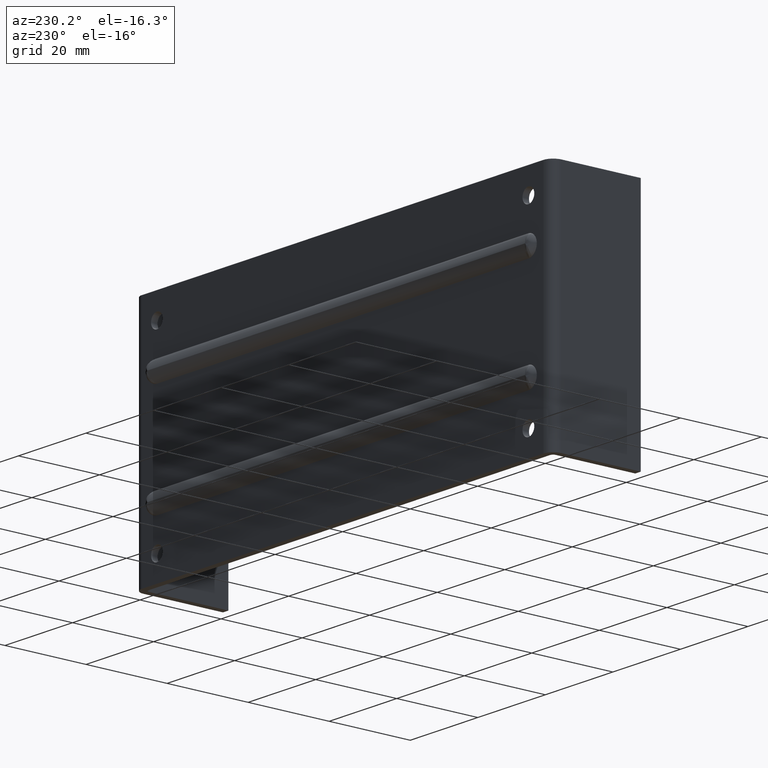
[diagram: clean part render]
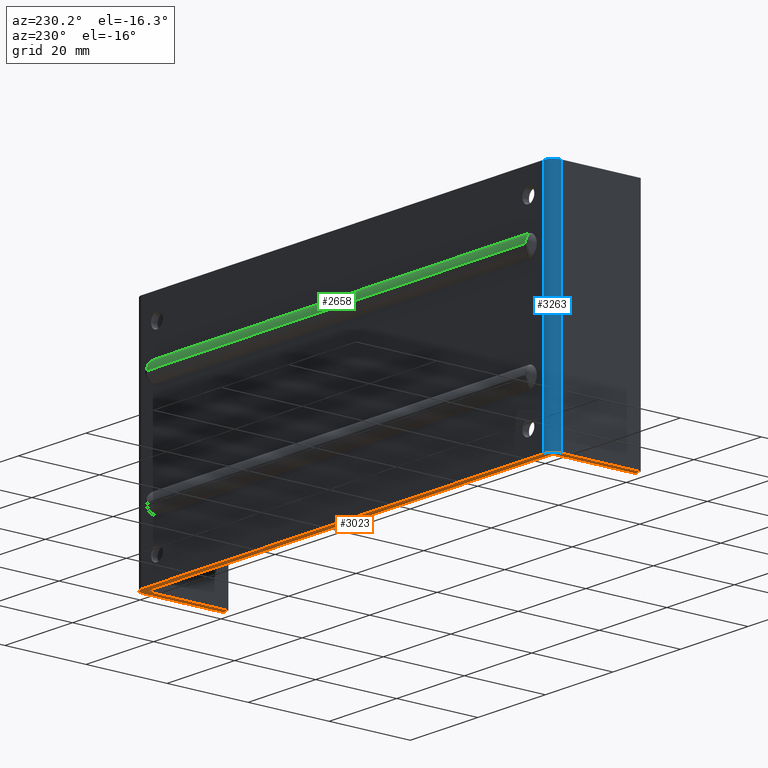
[diagram: same view with three faces highlighted in distinct colors, each labeled with its STEP entity id]
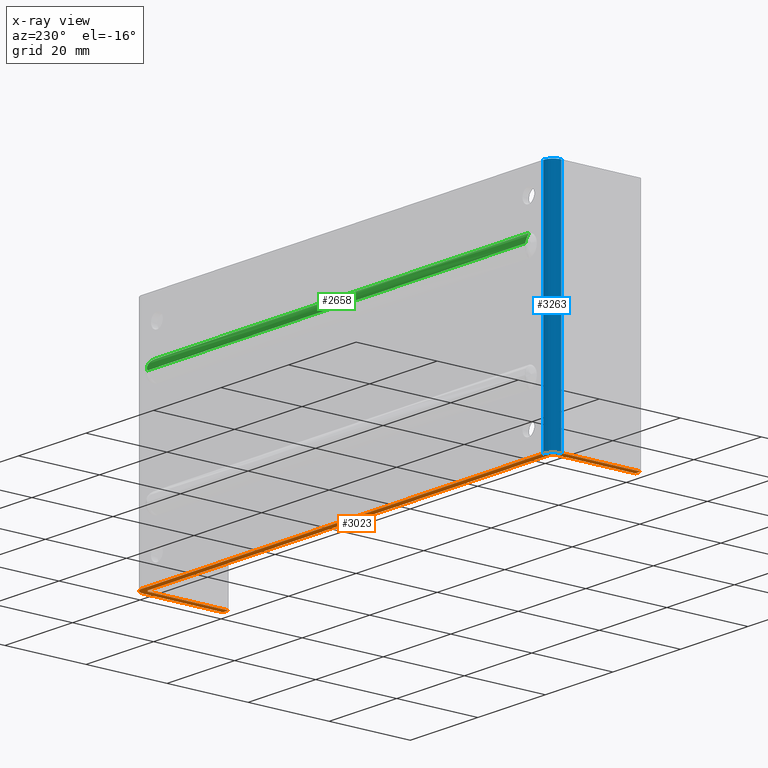
[diagram: x-ray of the same camera — body ghosted, the three highlighted faces saturated]
A machine part, auxiliary view with three faces highlighted in distinct colors.
The next image is the same camera in x-ray (body ghosted, the three faces saturated) — at least one of them is partly hidden behind the body in this view.
Their STEP definitions:

[orange] entity #3023 — the highlighted face is a freeform B-spline surface patch.
#2900=CARTESIAN_POINT('',(-68.028813157095016,1.098899957359721,-29.0));
#2901=CARTESIAN_POINT('',(68.028808733238293,1.098899957359721,-29.0));
#2902=CARTESIAN_POINT('',(-68.028813157095030,-23.098900547445709,-29.0));
#2903=CARTESIAN_POINT('',(68.028808733238293,-23.098900547445709,-29.0));
#2904=B_SPLINE_SURFACE_WITH_KNOTS('',1,1,((#2900,#2902),(#2901,#2903)),.UNSPECIFIED.,.F.,.F.,.U.,(2,2),(2,2),(0.0,136.057621890333310),(0.0,24.197800504805429),.UNSPECIFIED.);
#2905=CARTESIAN_POINT('',(-59.450000000000003,-1.421085E-014,-29.0));
#2906=VERTEX_POINT('',#2905);
#2907=CARTESIAN_POINT('',(-61.850000000000001,-2.400000000000000,-29.0));
#2908=VERTEX_POINT('',#2907);
#2909=CARTESIAN_POINT('',(-59.450000000000003,0.0,-29.0));
#2910=CARTESIAN_POINT('',(-61.849999999999994,0.0,-29.000000000000007));
#2911=CARTESIAN_POINT('',(-61.850000000000001,-2.400000000000000,-29.0));
#2919=(BOUNDED_CURVE()B_SPLINE_CURVE(2,(#2909,#2910,#2911),.UNSPECIFIED.,.F.,.U.)CURVE()GEOMETRIC_REPRESENTATION_ITEM()QUASI_UNIFORM_CURVE()RATIONAL_B_SPLINE_CURVE((1.0,0.707106781186547,1.0))REPRESENTATION_ITEM(''));
#2920=EDGE_CURVE('',#2906,#2908,#2919,.T.);
#2921=ORIENTED_EDGE('',*,*,#2920,.F.);
#2922=CARTESIAN_POINT('',(59.450000000000003,-7.105427E-015,-29.0));
#2923=VERTEX_POINT('',#2922);
#2924=CARTESIAN_POINT('',(59.450000000000003,-7.105427E-015,-29.0));
#2925=CARTESIAN_POINT('',(-59.450000000000003,-1.421085E-014,-29.0));
#2926=QUASI_UNIFORM_CURVE('',1,(#2924,#2925),.UNSPECIFIED.,.F.,.U.);
#2927=EDGE_CURVE('',#2923,#2906,#2926,.T.);
#2928=ORIENTED_EDGE('',*,*,#2927,.F.);
#2929=CARTESIAN_POINT('',(61.850000000000001,-2.400000000000000,-29.0));
#2930=VERTEX_POINT('',#2929);
#2931=CARTESIAN_POINT('',(61.850000000000001,-2.400000000000000,-29.0));
#2932=CARTESIAN_POINT('',(61.849999999999994,0.0,-29.000000000000007));
#2933=CARTESIAN_POINT('',(59.450000000000003,0.0,-29.0));
#2941=(BOUNDED_CURVE()B_SPLINE_CURVE(2,(#2931,#2932,#2933),.UNSPECIFIED.,.F.,.U.)CURVE()GEOMETRIC_REPRESENTATION_ITEM()QUASI_UNIFORM_CURVE()RATIONAL_B_SPLINE_CURVE((1.0,0.707106781186547,1.0))REPRESENTATION_ITEM(''));
#2942=EDGE_CURVE('',#2930,#2923,#2941,.T.);
#2943=ORIENTED_EDGE('',*,*,#2942,.F.);
#2944=CARTESIAN_POINT('',(61.850000000000001,-22.0,-29.0));
#2945=VERTEX_POINT('',#2944);
#2946=CARTESIAN_POINT('',(61.850000000000001,-22.0,-29.0));
#2947=CARTESIAN_POINT('',(61.850000000000001,-2.400000000000000,-29.0));
#2948=QUASI_UNIFORM_CURVE('',1,(#2946,#2947),.UNSPECIFIED.,.F.,.U.);
#2949=EDGE_CURVE('',#2945,#2930,#2948,.T.);
#2950=ORIENTED_EDGE('',*,*,#2949,.F.);
#2951=CARTESIAN_POINT('',(60.250000000000000,-22.0,-29.0));
#2952=VERTEX_POINT('',#2951);
#2953=CARTESIAN_POINT('',(60.250000000000000,-22.0,-29.0));
#2954=CARTESIAN_POINT('',(61.850000000000001,-22.0,-29.0));
#2955=QUASI_UNIFORM_CURVE('',1,(#2953,#2954),.UNSPECIFIED.,.F.,.U.);
#2956=EDGE_CURVE('',#2952,#2945,#2955,.T.);
#2957=ORIENTED_EDGE('',*,*,#2956,.F.);
#2958=CARTESIAN_POINT('',(60.250000000000000,-2.400000000000000,-29.0));
#2959=VERTEX_POINT('',#2958);
#2960=CARTESIAN_POINT('',(60.250000000000000,-2.400000000000000,-29.0));
#2961=CARTESIAN_POINT('',(60.250000000000000,-22.0,-29.0));
#2962=QUASI_UNIFORM_CURVE('',1,(#2960,#2961),.UNSPECIFIED.,.F.,.U.);
#2963=EDGE_CURVE('',#2959,#2952,#2962,.T.);
#2964=ORIENTED_EDGE('',*,*,#2963,.F.);
#2965=CARTESIAN_POINT('',(59.450000000000003,-1.600000000000000,-29.0));
#2966=VERTEX_POINT('',#2965);
#2967=CARTESIAN_POINT('',(60.250000000000007,-2.400000000000000,-29.0));
#2968=CARTESIAN_POINT('',(60.250000000000007,-1.600000000000000,-29.0));
#2969=CARTESIAN_POINT('',(59.450000000000003,-1.600000000000000,-29.0));
#2977=(BOUNDED_CURVE()B_SPLINE_CURVE(2,(#2967,#2968,#2969),.UNSPECIFIED.,.F.,.U.)CURVE()GEOMETRIC_REPRESENTATION_ITEM()QUASI_UNIFORM_CURVE()RATIONAL_B_SPLINE_CURVE((1.0,0.707106781186548,1.0))REPRESENTATION_ITEM(''));
#2978=EDGE_CURVE('',#2959,#2966,#2977,.T.);
#2979=ORIENTED_EDGE('',*,*,#2978,.T.);
#2980=CARTESIAN_POINT('',(-59.450000000000003,-1.600000000000000,-29.0));
#2981=VERTEX_POINT('',#2980);
#2982=CARTESIAN_POINT('',(-59.450000000000003,-1.600000000000000,-29.0));
#2983=CARTESIAN_POINT('',(59.450000000000003,-1.600000000000000,-29.0));
#2984=QUASI_UNIFORM_CURVE('',1,(#2982,#2983),.UNSPECIFIED.,.F.,.U.);
#2985=EDGE_CURVE('',#2981,#2966,#2984,.T.);
#2986=ORIENTED_EDGE('',*,*,#2985,.F.);
#2987=CARTESIAN_POINT('',(-60.250000000000000,-2.400000000000000,-29.0));
#2988=VERTEX_POINT('',#2987);
#2989=CARTESIAN_POINT('',(-59.450000000000003,-1.600000000000000,-29.0));
#2990=CARTESIAN_POINT('',(-60.250000000000007,-1.600000000000000,-29.0));
#2991=CARTESIAN_POINT('',(-60.250000000000007,-2.400000000000000,-29.0));
#2999=(BOUNDED_CURVE()B_SPLINE_CURVE(2,(#2989,#2990,#2991),.UNSPECIFIED.,.F.,.U.)CURVE()GEOMETRIC_REPRESENTATION_ITEM()QUASI_UNIFORM_CURVE()RATIONAL_B_SPLINE_CURVE((1.0,0.707106781186548,1.0))REPRESENTATION_ITEM(''));
#3000=EDGE_CURVE('',#2981,#2988,#2999,.T.);
#3001=ORIENTED_EDGE('',*,*,#3000,.T.);
#3002=CARTESIAN_POINT('',(-60.250000000000000,-22.0,-29.0));
#3003=VERTEX_POINT('',#3002);
#3004=CARTESIAN_POINT('',(-60.250000000000000,-22.0,-29.0));
#3005=CARTESIAN_POINT('',(-60.250000000000000,-2.400000000000000,-29.0));
#3006=QUASI_UNIFORM_CURVE('',1,(#3004,#3005),.UNSPECIFIED.,.F.,.U.);
#3007=EDGE_CURVE('',#3003,#2988,#3006,.T.);
#3008=ORIENTED_EDGE('',*,*,#3007,.F.);
#3009=CARTESIAN_POINT('',(-61.850000000000001,-22.0,-29.0));
#3010=VERTEX_POINT('',#3009);
#3011=CARTESIAN_POINT('',(-61.850000000000001,-22.0,-29.0));
#3012=CARTESIAN_POINT('',(-60.250000000000000,-22.0,-29.0));
#3013=QUASI_UNIFORM_CURVE('',1,(#3011,#3012),.UNSPECIFIED.,.F.,.U.);
#3014=EDGE_CURVE('',#3010,#3003,#3013,.T.);
#3015=ORIENTED_EDGE('',*,*,#3014,.F.);
#3016=CARTESIAN_POINT('',(-61.850000000000001,-2.400000000000000,-29.0));
#3017=CARTESIAN_POINT('',(-61.850000000000001,-22.0,-29.0));
#3018=QUASI_UNIFORM_CURVE('',1,(#3016,#3017),.UNSPECIFIED.,.F.,.U.);
#3019=EDGE_CURVE('',#2908,#3010,#3018,.T.);
#3020=ORIENTED_EDGE('',*,*,#3019,.F.);
#3021=EDGE_LOOP('',(#2921,#2928,#2943,#2950,#2957,#2964,#2979,#2986,#3001,#3008,#3015,#3020));
#3022=FACE_OUTER_BOUND('',#3021,.T.);
#3023=ADVANCED_FACE('',(#3022),#2904,.T.);

[blue] entity #3263 — the highlighted face is a freeform B-spline surface patch.
#2781=CARTESIAN_POINT('',(-59.450000000000003,-1.421085E-014,29.0));
#2782=VERTEX_POINT('',#2781);
#2783=CARTESIAN_POINT('',(-61.850000000000001,-2.400000000000000,29.0));
#2784=VERTEX_POINT('',#2783);
#2785=CARTESIAN_POINT('',(-59.450000000000003,0.0,29.0));
#2786=CARTESIAN_POINT('',(-61.849999999999994,0.0,29.000000000000007));
#2787=CARTESIAN_POINT('',(-61.850000000000001,-2.400000000000000,29.0));
#2795=(BOUNDED_CURVE()B_SPLINE_CURVE(2,(#2785,#2786,#2787),.UNSPECIFIED.,.F.,.U.)CURVE()GEOMETRIC_REPRESENTATION_ITEM()QUASI_UNIFORM_CURVE()RATIONAL_B_SPLINE_CURVE((1.0,0.707106781186547,1.0))REPRESENTATION_ITEM(''));
#2796=EDGE_CURVE('',#2782,#2784,#2795,.T.);
#2905=CARTESIAN_POINT('',(-59.450000000000003,-1.421085E-014,-29.0));
#2906=VERTEX_POINT('',#2905);
#2907=CARTESIAN_POINT('',(-61.850000000000001,-2.400000000000000,-29.0));
#2908=VERTEX_POINT('',#2907);
#2909=CARTESIAN_POINT('',(-59.450000000000003,0.0,-29.0));
#2910=CARTESIAN_POINT('',(-61.849999999999994,0.0,-29.000000000000007));
#2911=CARTESIAN_POINT('',(-61.850000000000001,-2.400000000000000,-29.0));
#2919=(BOUNDED_CURVE()B_SPLINE_CURVE(2,(#2909,#2910,#2911),.UNSPECIFIED.,.F.,.U.)CURVE()GEOMETRIC_REPRESENTATION_ITEM()QUASI_UNIFORM_CURVE()RATIONAL_B_SPLINE_CURVE((1.0,0.707106781186547,1.0))REPRESENTATION_ITEM(''));
#2920=EDGE_CURVE('',#2906,#2908,#2919,.T.);
#3229=CARTESIAN_POINT('',(-61.850000000000001,-2.400000000000000,-29.0));
#3230=CARTESIAN_POINT('',(-61.850000000000001,-2.400000000000000,29.0));
#3231=QUASI_UNIFORM_CURVE('',1,(#3229,#3230),.UNSPECIFIED.,.F.,.U.);
#3232=EDGE_CURVE('',#2908,#2784,#3231,.T.);
#3239=CARTESIAN_POINT('',(-61.849177579941340,-2.462824675938896,-30.450000000000010));
#3240=CARTESIAN_POINT('',(-61.849177579941340,-2.462824675938896,30.486250000000009));
#3241=CARTESIAN_POINT('',(-61.918381405072196,0.179962783269728,-30.450000000000014));
#3242=CARTESIAN_POINT('',(-61.918381405072196,0.179962783269728,30.486250000000016));
#3243=CARTESIAN_POINT('',(-59.281232483981320,-0.005941202573142,-30.450000000000006));
#3244=CARTESIAN_POINT('',(-59.281232483981320,-0.005941202573142,30.486250000000013));
#3252=(BOUNDED_SURFACE()B_SPLINE_SURFACE(1,2,((#3239,#3241,#3243),(#3240,#3242,#3244)),.UNSPECIFIED.,.F.,.F.,.U.)B_SPLINE_SURFACE_WITH_KNOTS((2,2),(3,3),(0.0,60.936250000000022),(0.0,4.250740827598659),.UNSPECIFIED.)GEOMETRIC_REPRESENTATION_ITEM()RATIONAL_B_SPLINE_SURFACE(((1.0,0.670944284812314,0.996392526645908),(1.0,0.670944284812314,0.996392526645908)))REPRESENTATION_ITEM('')SURFACE());
#3253=ORIENTED_EDGE('',*,*,#2796,.F.);
#3254=CARTESIAN_POINT('',(-59.450000000000003,-1.421085E-014,-29.0));
#3255=CARTESIAN_POINT('',(-59.450000000000003,-1.421085E-014,29.0));
#3256=QUASI_UNIFORM_CURVE('',1,(#3254,#3255),.UNSPECIFIED.,.F.,.U.);
#3257=EDGE_CURVE('',#2906,#2782,#3256,.T.);
#3258=ORIENTED_EDGE('',*,*,#3257,.F.);
#3259=ORIENTED_EDGE('',*,*,#2920,.T.);
#3260=ORIENTED_EDGE('',*,*,#3232,.T.);
#3261=EDGE_LOOP('',(#3253,#3258,#3259,#3260));
#3262=FACE_OUTER_BOUND('',#3261,.T.);
#3263=ADVANCED_FACE('',(#3262),#3252,.T.);

[green] entity #2658 — the highlighted face is a freeform B-spline surface patch.
#1238=CARTESIAN_POINT('',(-55.899997775995402,1.600000000000000,13.002000800640641));
#1239=VERTEX_POINT('',#1238);
#1240=CARTESIAN_POINT('',(-55.594310570520712,0.392682926829134,15.278539705924249));
#1241=VERTEX_POINT('',#1240);
#1242=CARTESIAN_POINT('',(-55.899997775995502,1.600000000000000,13.002000800640641));
#1243=CARTESIAN_POINT('',(-55.913118406132618,1.600000000000000,13.028811387343380));
#1244=CARTESIAN_POINT('',(-55.926043783379171,1.599601198264968,13.056279543629129));
#1245=CARTESIAN_POINT('',(-55.950445850358733,1.597970663117801,13.111134508011331));
#1246=CARTESIAN_POINT('',(-55.962094964847658,1.596740085328097,13.138710640260451));
#1247=CARTESIAN_POINT('',(-55.995489003294857,1.591760621752852,13.221844834887021));
#1248=CARTESIAN_POINT('',(-56.015687270208531,1.586724742913201,13.277806454078879));
#1249=CARTESIAN_POINT('',(-56.052310809943712,1.572990262228307,13.390658887847939));
#1250=CARTESIAN_POINT('',(-56.068734608447137,1.564292598657381,13.447550315802211));
#1251=CARTESIAN_POINT('',(-56.097963462812139,1.542971786525199,13.562180806144420));
#1252=CARTESIAN_POINT('',(-56.110755961739827,1.530316241404388,13.619964732846210));
#1253=CARTESIAN_POINT('',(-56.143207043476913,1.486904104362156,13.791389834115510));
#1254=CARTESIAN_POINT('',(-56.157310995987658,1.450561514785157,13.904146541119070));
#1255=CARTESIAN_POINT('',(-56.167331141457623,1.384499159389330,14.070825292017050));
#1256=CARTESIAN_POINT('',(-56.168790793689297,1.360437628868952,14.126201690569530));
#1257=CARTESIAN_POINT('',(-56.167747824898100,1.308831602975882,14.234993857216841));
#1258=CARTESIAN_POINT('',(-56.165265615887677,1.281408448991259,14.288197240948341));
#1259=CARTESIAN_POINT('',(-56.151821561437373,1.194445752496620,14.444314022221061));
#1260=CARTESIAN_POINT('',(-56.134977061707851,1.130217616195872,14.543758586057850));
#1261=CARTESIAN_POINT('',(-56.095640648956362,1.024939099889542,14.685929918301770));
#1262=CARTESIAN_POINT('',(-56.080314734730301,0.988785806589454,14.731566878326531));
#1263=CARTESIAN_POINT('',(-56.044834520878297,0.914651910043627,14.819420959520659));
#1264=CARTESIAN_POINT('',(-56.024604693376617,0.876539597678760,14.861772274210431));
#1265=CARTESIAN_POINT('',(-55.956195405320017,0.760893051673009,14.982767936000950));
#1266=CARTESIAN_POINT('',(-55.901018087442480,0.682772208527975,15.054641408120510));
#1267=CARTESIAN_POINT('',(-55.816315104158107,0.587126765078487,15.134020633225971));
#1268=CARTESIAN_POINT('',(-55.798502479523847,0.568036636959027,15.149421851315839));
#1269=CARTESIAN_POINT('',(-55.761506019153117,0.530591726557294,15.178851393456700));
#1270=CARTESIAN_POINT('',(-55.742336870948613,0.512242907397692,15.192879144689829));
#1271=CARTESIAN_POINT('',(-55.682706203708847,0.458506015865872,15.232966063345071));
#1272=CARTESIAN_POINT('',(-55.640136135936189,0.424414423374876,15.257037047722250));
#1273=CARTESIAN_POINT('',(-55.594310570520733,0.392682926829103,15.278539705924270));
#1274=B_SPLINE_CURVE_WITH_KNOTS('',3,(#1242,#1243,#1244,#1245,#1246,#1247,#1248,#1249,#1250,#1251,#1252,#1253,#1254,#1255,#1256,#1257,#1258,#1259,#1260,#1261,#1262,#1263,#1264,#1265,#1266,#1267,#1268,#1269,#1270,#1271,#1272,#1273),.UNSPECIFIED.,.F.,.U.,(4,2,2,2,2,2,2,2,2,2,2,2,2,2,2,4),(0.0,0.031249999999999,0.062499999999998,0.124999999999998,0.187499999999998,0.249999999999998,0.374999999999997,0.437499999999997,0.499999999999997,0.624999999999997,0.687499999999998,0.749999999999999,0.875000000000003,0.906250000000003,0.937500000000003,1.0),.UNSPECIFIED.);
#1275=EDGE_CURVE('',#1239,#1241,#1274,.T.);
#1353=CARTESIAN_POINT('',(-55.0,0.0,15.500000000000000));
#1354=VERTEX_POINT('',#1353);
#1368=CARTESIAN_POINT('',(-55.594310570520712,0.392682926829134,15.278539705924249));
#1369=CARTESIAN_POINT('',(-55.403190508964890,0.260343576117269,15.368218672717671));
#1370=CARTESIAN_POINT('',(-55.206273882569000,0.126956556360054,15.441553207922761));
#1371=CARTESIAN_POINT('',(-55.0,-1.062518E-014,15.500000000000000));
#1372=QUASI_UNIFORM_CURVE('',3,(#1368,#1369,#1370,#1371),.UNSPECIFIED.,.F.,.U.);
#1373=EDGE_CURVE('',#1241,#1354,#1372,.T.);
#1596=CARTESIAN_POINT('',(55.0,0.0,15.500000000000000));
#1597=VERTEX_POINT('',#1596);
#1598=CARTESIAN_POINT('',(55.594310570520904,0.392682926829259,15.278539705924199));
#1599=VERTEX_POINT('',#1598);
#1600=CARTESIAN_POINT('',(55.0,1.582935E-014,15.500000000000000));
#1601=CARTESIAN_POINT('',(55.206273882570009,0.126956556358851,15.441553207923320));
#1602=CARTESIAN_POINT('',(55.403190508965039,0.260343576117346,15.368218672717660));
#1603=CARTESIAN_POINT('',(55.594310570520904,0.392682926829259,15.278539705924199));
#1604=QUASI_UNIFORM_CURVE('',3,(#1600,#1601,#1602,#1603),.UNSPECIFIED.,.F.,.U.);
#1605=EDGE_CURVE('',#1597,#1599,#1604,.T.);
#1694=CARTESIAN_POINT('',(55.899998887997697,1.600000000000000,13.002000800640641));
#1695=VERTEX_POINT('',#1694);
#1734=CARTESIAN_POINT('',(55.594310570520904,0.392682926829249,15.278539705924191));
#1735=CARTESIAN_POINT('',(55.640136135936203,0.424414423374910,15.257037047722250));
#1736=CARTESIAN_POINT('',(55.682706203708712,0.458506015865774,15.232966063345170));
#1737=CARTESIAN_POINT('',(55.742336870948243,0.512242907397380,15.192879144690091));
#1738=CARTESIAN_POINT('',(55.761506019152698,0.530591726556908,15.178851393457020));
#1739=CARTESIAN_POINT('',(55.798502479523307,0.568036636958488,15.149421851316291));
#1740=CARTESIAN_POINT('',(55.816315104157482,0.587126765077866,15.134020633226500));
#1741=CARTESIAN_POINT('',(55.901018087441663,0.682772208526982,15.054641408121411));
#1742=CARTESIAN_POINT('',(55.956195405319093,0.760893051671713,14.982767936002190));
#1743=CARTESIAN_POINT('',(56.024604693375650,0.876539597677049,14.861772274212310));
#1744=CARTESIAN_POINT('',(56.044834520877252,0.914651910041647,14.819420959522910));
#1745=CARTESIAN_POINT('',(56.080314734728788,0.988785806586135,14.731566878330639));
#1746=CARTESIAN_POINT('',(56.095640648954543,1.024939099885253,14.685929918307270));
#1747=CARTESIAN_POINT('',(56.134977061705243,1.130217616187990,14.543758586069201));
#1748=CARTESIAN_POINT('',(56.151821561437032,1.194445752495623,14.444314022222560));
#1749=CARTESIAN_POINT('',(56.165265615887343,1.281408448988977,14.288197240952661));
#1750=CARTESIAN_POINT('',(56.167747824897781,1.308831602972762,14.234993857222969));
#1751=CARTESIAN_POINT('',(56.168790793689382,1.360437628863653,14.126201690581270));
#1752=CARTESIAN_POINT('',(56.167331141457900,1.384499159386284,14.070825292024461));
#1753=CARTESIAN_POINT('',(56.157310995987913,1.450561514784930,13.904146541120401));
#1754=CARTESIAN_POINT('',(56.143207043476707,1.486904104362604,13.791389834114250));
#1755=CARTESIAN_POINT('',(56.110755961739159,1.530316241405058,13.619964732843471));
#1756=CARTESIAN_POINT('',(56.097963462811421,1.542971786525771,13.562180806141770));
#1757=CARTESIAN_POINT('',(56.068734608446498,1.564292598657718,13.447550315800269));
#1758=CARTESIAN_POINT('',(56.052310809943101,1.572990262228555,13.390658887846350));
#1759=CARTESIAN_POINT('',(56.015687270208034,1.586724742913313,13.277806454077959));
#1760=CARTESIAN_POINT('',(55.995489003294452,1.591760621752921,13.221844834886410));
#1761=CARTESIAN_POINT('',(55.962094964847253,1.596740085328127,13.138710640260340));
#1762=CARTESIAN_POINT('',(55.950445850358363,1.597970663117824,13.111134508011380));
#1763=CARTESIAN_POINT('',(55.926043849979152,1.599601193814762,13.056279693345330));
#1764=CARTESIAN_POINT('',(55.913118547229892,1.599999995646216,13.028811687224479));
#1765=CARTESIAN_POINT('',(55.899998887997697,1.600000000000000,13.002000800640641));
#1766=B_SPLINE_CURVE_WITH_KNOTS('',3,(#1734,#1735,#1736,#1737,#1738,#1739,#1740,#1741,#1742,#1743,#1744,#1745,#1746,#1747,#1748,#1749,#1750,#1751,#1752,#1753,#1754,#1755,#1756,#1757,#1758,#1759,#1760,#1761,#1762,#1763,#1764,#1765),.UNSPECIFIED.,.F.,.U.,(4,2,2,2,2,2,2,2,2,2,2,2,2,2,2,4),(0.000000170581356,0.062500170581356,0.093750170581358,0.125000170581361,0.250000170581365,0.312500170581365,0.375000170581366,0.500000170581365,0.562500170581364,0.625000170581363,0.750000170581362,0.812500170581362,0.875000170581361,0.937500170581361,0.968750170581358,1.0),.UNSPECIFIED.);
#1767=EDGE_CURVE('',#1599,#1695,#1766,.T.);
#2628=CARTESIAN_POINT('',(-58.976087545529317,-0.110055739896016,15.547784753743651));
#2629=CARTESIAN_POINT('',(59.046297339233277,-0.110055739895988,15.547784753743651));
#2630=CARTESIAN_POINT('',(-58.976087545529317,1.700755658067098,14.808074332854542));
#2631=CARTESIAN_POINT('',(59.046297339233284,1.700755658067138,14.808074332854517));
#2632=CARTESIAN_POINT('',(-58.976087545529310,1.596057973890857,12.854808395842070));
#2633=CARTESIAN_POINT('',(59.046297339233291,1.596057973890893,12.854808395842031));
#2641=(BOUNDED_SURFACE()B_SPLINE_SURFACE(1,2,((#2628,#2630,#2632),(#2629,#2631,#2633)),.UNSPECIFIED.,.F.,.F.,.U.)B_SPLINE_SURFACE_WITH_KNOTS((2,2),(3,3),(0.0,118.022384884762600),(0.0,3.513104454528295),.UNSPECIFIED.)GEOMETRIC_REPRESENTATION_ITEM()RATIONAL_B_SPLINE_SURFACE(((1.0,0.814538979517989,0.999155007040035),(1.0,0.814538979517989,0.999155007040035)))REPRESENTATION_ITEM('')SURFACE());
#2642=CARTESIAN_POINT('',(-55.0,0.0,15.500000000000000));
#2643=CARTESIAN_POINT('',(55.0,0.0,15.500000000000000));
#2644=QUASI_UNIFORM_CURVE('',1,(#2642,#2643),.UNSPECIFIED.,.F.,.U.);
#2645=EDGE_CURVE('',#1354,#1597,#2644,.T.);
#2646=ORIENTED_EDGE('',*,*,#2645,.T.);
#2647=ORIENTED_EDGE('',*,*,#1605,.T.);
#2648=ORIENTED_EDGE('',*,*,#1767,.T.);
#2649=CARTESIAN_POINT('',(-55.899997775995402,1.600000000000000,13.002000800640641));
#2650=CARTESIAN_POINT('',(55.899998887997697,1.600000000000000,13.002000800640641));
#2651=QUASI_UNIFORM_CURVE('',1,(#2649,#2650),.UNSPECIFIED.,.F.,.U.);
#2652=EDGE_CURVE('',#1239,#1695,#2651,.T.);
#2653=ORIENTED_EDGE('',*,*,#2652,.F.);
#2654=ORIENTED_EDGE('',*,*,#1275,.T.);
#2655=ORIENTED_EDGE('',*,*,#1373,.T.);
#2656=EDGE_LOOP('',(#2646,#2647,#2648,#2653,#2654,#2655));
#2657=FACE_OUTER_BOUND('',#2656,.T.);
#2658=ADVANCED_FACE('',(#2657),#2641,.T.);